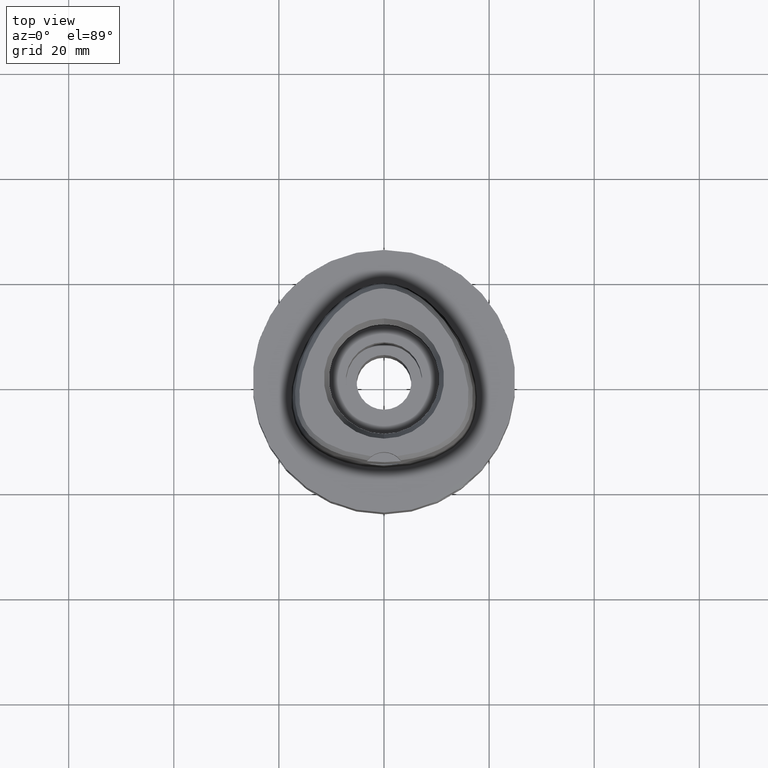
[diagram: clean part render]
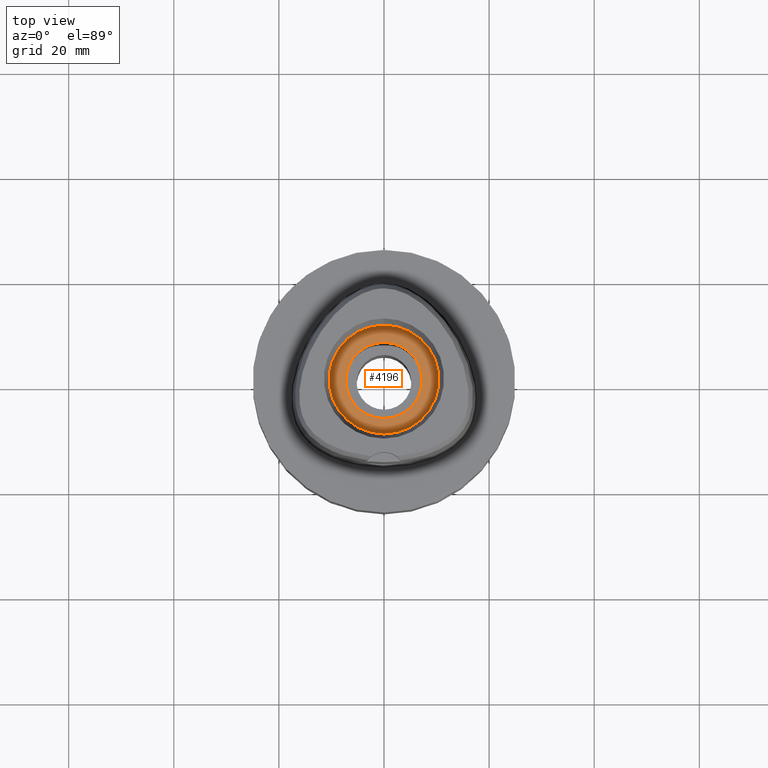
[diagram: same view with one face highlighted and labeled with its STEP entity id]
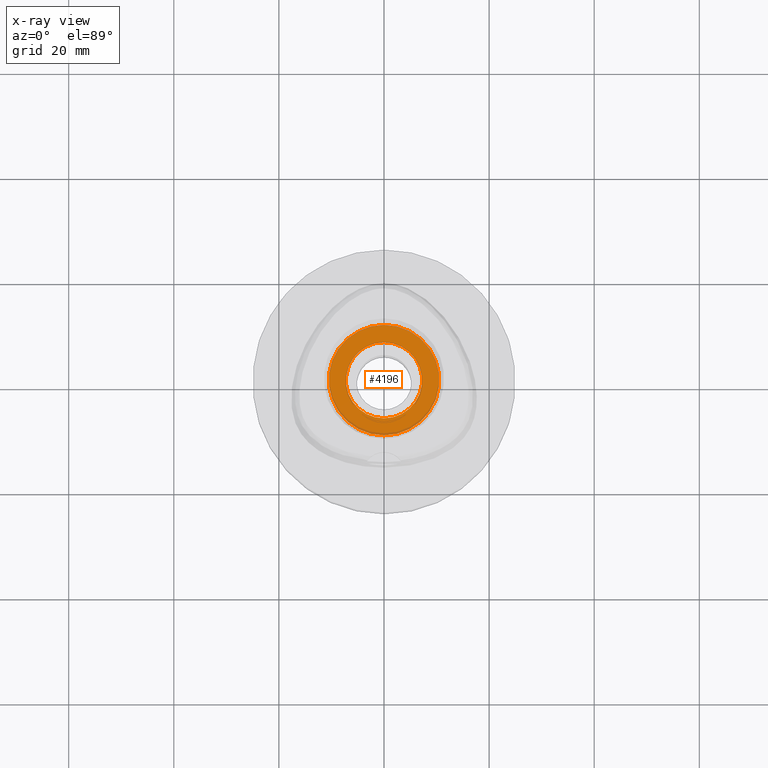
[diagram: x-ray of the same camera — body ghosted, the highlighted face saturated]
A machine part, top view. The second image highlights one B-rep face of the part: STEP entity #4196.
The next image is the same camera in x-ray: the body ghosted, the highlighted face saturated — about 2% of this face is hidden behind the body in this view.
In plain terms, the highlighted planar face has unit normal (0, 0, -1).
Its self-contained STEP definition (entity closure, byte-faithful):
#78 = AXIS2_PLACEMENT_3D ( 'NONE', #4243, #2692, #4200 ) ;
#198 = ORIENTED_EDGE ( 'NONE', *, *, #3190, .F. ) ;
#358 = CARTESIAN_POINT ( 'NONE',  ( 0.0000000000000000000, -10.50000000000000000, 10.00000000000000000 ) ) ;
#377 = PLANE ( 'NONE',  #4568 ) ;
#598 = VERTEX_POINT ( 'NONE', #2958 ) ;
#704 = CIRCLE ( 'NONE', #2759, 7.250000000000000000 ) ;
#741 = CARTESIAN_POINT ( 'NONE',  ( 0.0000000000000000000, 1.347111479061999855E-14, 10.00000000000000000 ) ) ;
#779 = DIRECTION ( 'NONE',  ( 0.0000000000000000000, 1.000000000000000000, 0.0000000000000000000 ) ) ;
#806 = EDGE_LOOP ( 'NONE', ( #3616, #1744 ) ) ;
#928 = CARTESIAN_POINT ( 'NONE',  ( 0.0000000000000000000, 1.610410540878999754E-14, 10.00000000000000000 ) ) ;
#1140 = DIRECTION ( 'NONE',  ( 0.0000000000000000000, 0.0000000000000000000, -1.000000000000000000 ) ) ;
#1203 = EDGE_LOOP ( 'NONE', ( #4169, #198 ) ) ;
#1430 = AXIS2_PLACEMENT_3D ( 'NONE', #3785, #2663, #779 ) ;
#1449 = FACE_BOUND ( 'NONE', #806, .T. ) ;
#1493 = DIRECTION ( 'NONE',  ( 0.0000000000000000000, -1.000000000000000000, 0.0000000000000000000 ) ) ;
#1654 = VERTEX_POINT ( 'NONE', #3550 ) ;
#1744 = ORIENTED_EDGE ( 'NONE', *, *, #4487, .F. ) ;
#2146 = DIRECTION ( 'NONE',  ( 0.0000000000000000000, -1.000000000000000000, 0.0000000000000000000 ) ) ;
#2217 = VERTEX_POINT ( 'NONE', #358 ) ;
#2280 = CIRCLE ( 'NONE', #78, 10.50000000000000000 ) ;
#2663 = DIRECTION ( 'NONE',  ( 0.0000000000000000000, 0.0000000000000000000, 1.000000000000000000 ) ) ;
#2692 = DIRECTION ( 'NONE',  ( 0.0000000000000000000, 0.0000000000000000000, -1.000000000000000000 ) ) ;
#2755 = AXIS2_PLACEMENT_3D ( 'NONE', #928, #3979, #2146 ) ;
#2759 = AXIS2_PLACEMENT_3D ( 'NONE', #4069, #3207, #4700 ) ;
#2882 = CARTESIAN_POINT ( 'NONE',  ( 0.0000000000000000000, 7.250000000000000000, 10.00000000000000000 ) ) ;
#2958 = CARTESIAN_POINT ( 'NONE',  ( 0.0000000000000000000, 10.50000000000000000, 10.00000000000000000 ) ) ;
#3190 = EDGE_CURVE ( 'NONE', #598, #2217, #2280, .T. ) ;
#3207 = DIRECTION ( 'NONE',  ( 0.0000000000000000000, 0.0000000000000000000, 1.000000000000000000 ) ) ;
#3359 = FACE_OUTER_BOUND ( 'NONE', #1203, .T. ) ;
#3374 = EDGE_CURVE ( 'NONE', #2217, #598, #3784, .T. ) ;
#3550 = CARTESIAN_POINT ( 'NONE',  ( 0.0000000000000000000, -7.250000000000000000, 10.00000000000000000 ) ) ;
#3616 = ORIENTED_EDGE ( 'NONE', *, *, #4000, .F. ) ;
#3656 = VERTEX_POINT ( 'NONE', #2882 ) ;
#3784 = CIRCLE ( 'NONE', #2755, 10.50000000000000000 ) ;
#3785 = CARTESIAN_POINT ( 'NONE',  ( 0.0000000000000000000, 1.610410540878999754E-14, 10.00000000000000000 ) ) ;
#3979 = DIRECTION ( 'NONE',  ( 0.0000000000000000000, 0.0000000000000000000, -1.000000000000000000 ) ) ;
#4000 = EDGE_CURVE ( 'NONE', #1654, #3656, #704, .T. ) ;
#4069 = CARTESIAN_POINT ( 'NONE',  ( 0.0000000000000000000, 1.610410540878999754E-14, 10.00000000000000000 ) ) ;
#4169 = ORIENTED_EDGE ( 'NONE', *, *, #3374, .F. ) ;
#4188 = CIRCLE ( 'NONE', #1430, 7.250000000000000000 ) ;
#4196 = ADVANCED_FACE ( 'NONE', ( #3359, #1449 ), #377, .F. ) ;
#4200 = DIRECTION ( 'NONE',  ( 0.0000000000000000000, 1.000000000000000000, 0.0000000000000000000 ) ) ;
#4243 = CARTESIAN_POINT ( 'NONE',  ( 0.0000000000000000000, 1.610410540878999754E-14, 10.00000000000000000 ) ) ;
#4487 = EDGE_CURVE ( 'NONE', #3656, #1654, #4188, .T. ) ;
#4568 = AXIS2_PLACEMENT_3D ( 'NONE', #741, #1140, #1493 ) ;
#4700 = DIRECTION ( 'NONE',  ( 0.0000000000000000000, -1.000000000000000000, 0.0000000000000000000 ) ) ;